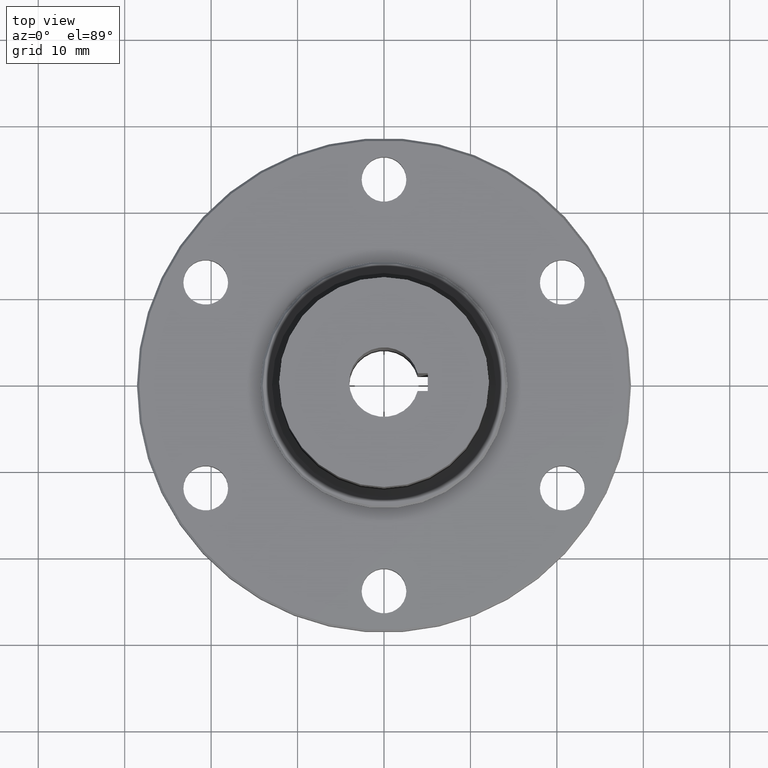
[diagram: clean part render]
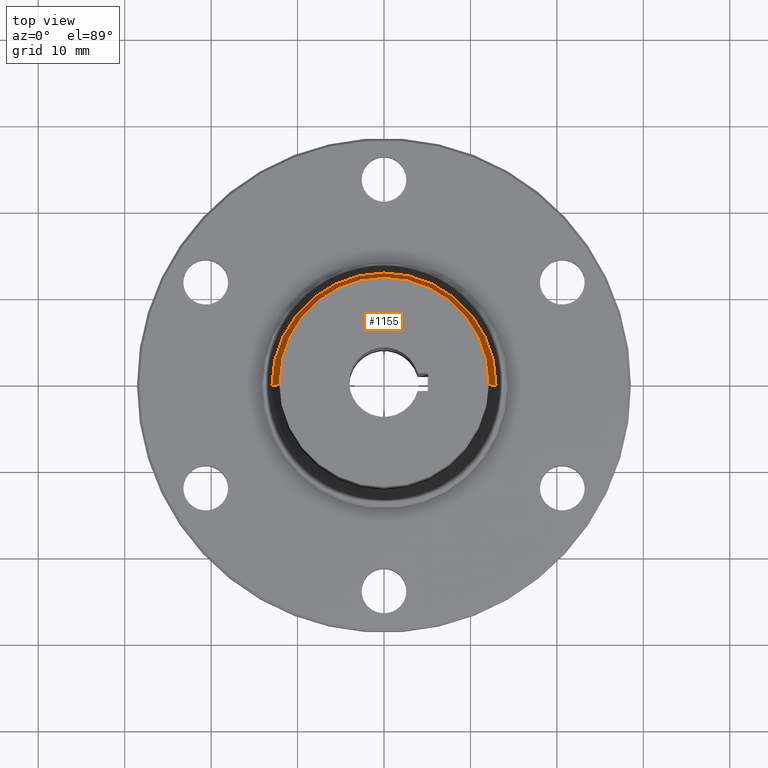
[diagram: same view with one face highlighted and labeled with its STEP entity id]
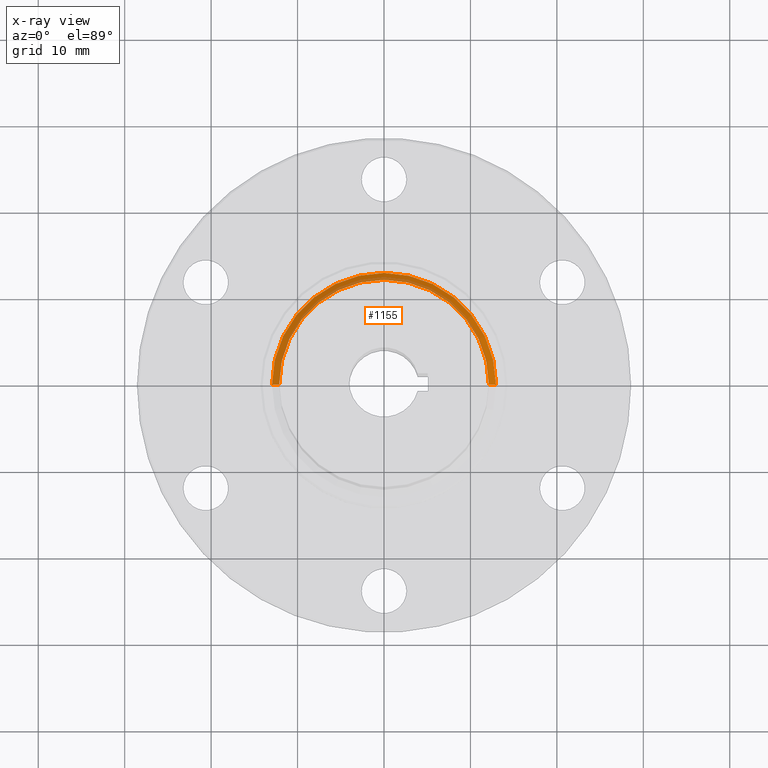
[diagram: x-ray of the same camera — body ghosted, the highlighted face saturated]
A machine part, top view. The second image highlights one B-rep face of the part: STEP entity #1155.
The next image is the same camera in x-ray: the body ghosted, the highlighted face saturated — about 25% of this face is hidden behind the body in this view.
In plain terms, the highlighted conical surface has half-angle 45 deg.
Its self-contained STEP definition (entity closure, byte-faithful):
#74 = CARTESIAN_POINT ( 'NONE',  ( -0.4779999999999999800, 0.0000000000000000000, 0.2820000000000018000 ) ) ;
#82 = DIRECTION ( 'NONE',  ( 1.000000000000000000, 0.0000000000000000000, 0.0000000000000000000 ) ) ;
#110 = VERTEX_POINT ( 'NONE', #504 ) ;
#121 = DIRECTION ( 'NONE',  ( 1.000000000000000000, 0.0000000000000000000, 0.0000000000000000000 ) ) ;
#132 = DIRECTION ( 'NONE',  ( 0.0000000000000000000, 0.0000000000000000000, 1.000000000000000000 ) ) ;
#136 = CARTESIAN_POINT ( 'NONE',  ( 0.0000000000000000000, 0.0000000000000000000, 0.2820000000000018000 ) ) ;
#141 = VERTEX_POINT ( 'NONE', #432 ) ;
#146 = CARTESIAN_POINT ( 'NONE',  ( 0.0000000000000000000, 0.0000000000000000000, 0.2820000000000018000 ) ) ;
#149 = EDGE_CURVE ( 'NONE', #918, #141, #294, .T. ) ;
#205 = LINE ( 'NONE', #355, #980 ) ;
#228 = DIRECTION ( 'NONE',  ( -0.0000000000000000000, -0.0000000000000000000, -1.000000000000000000 ) ) ;
#247 = CIRCLE ( 'NONE', #713, 0.5100000000000015600 ) ;
#262 = ORIENTED_EDGE ( 'NONE', *, *, #434, .T. ) ;
#293 = ORIENTED_EDGE ( 'NONE', *, *, #816, .F. ) ;
#294 = CIRCLE ( 'NONE', #901, 0.4779999999999999800 ) ;
#355 = CARTESIAN_POINT ( 'NONE',  ( 0.4779999999999999800, 5.853811699924347700E-017, 0.2820000000000018000 ) ) ;
#408 = CONICAL_SURFACE ( 'NONE', #829, 0.4779999999999999800, 0.7853981633974450600 ) ;
#432 = CARTESIAN_POINT ( 'NONE',  ( -0.4779999999999999800, 0.0000000000000000000, 0.2820000000000018000 ) ) ;
#434 = EDGE_CURVE ( 'NONE', #918, #903, #205, .T. ) ;
#504 = CARTESIAN_POINT ( 'NONE',  ( -0.5100000000000015600, 0.0000000000000000000, 0.2500000000000000000 ) ) ;
#626 = DIRECTION ( 'NONE',  ( 0.0000000000000000000, 0.0000000000000000000, -1.000000000000000000 ) ) ;
#652 = LINE ( 'NONE', #74, #839 ) ;
#668 = EDGE_CURVE ( 'NONE', #141, #110, #652, .T. ) ;
#713 = AXIS2_PLACEMENT_3D ( 'NONE', #808, #228, #82 ) ;
#718 = DIRECTION ( 'NONE',  ( -1.000000000000000000, 0.0000000000000000000, 0.0000000000000000000 ) ) ;
#760 = CARTESIAN_POINT ( 'NONE',  ( 0.5100000000000015600, 6.245698675651520800E-017, 0.2500000000000000000 ) ) ;
#778 = ORIENTED_EDGE ( 'NONE', *, *, #149, .F. ) ;
#803 = ORIENTED_EDGE ( 'NONE', *, *, #668, .F. ) ;
#808 = CARTESIAN_POINT ( 'NONE',  ( 0.0000000000000000000, 0.0000000000000000000, 0.2500000000000000000 ) ) ;
#816 = EDGE_CURVE ( 'NONE', #110, #903, #247, .T. ) ;
#829 = AXIS2_PLACEMENT_3D ( 'NONE', #146, #626, #718 ) ;
#839 = VECTOR ( 'NONE', #841, 39.37007874015748100 ) ;
#841 = DIRECTION ( 'NONE',  ( -0.7071067811865452400, 0.0000000000000000000, -0.7071067811865497900 ) ) ;
#901 = AXIS2_PLACEMENT_3D ( 'NONE', #136, #132, #121 ) ;
#903 = VERTEX_POINT ( 'NONE', #760 ) ;
#918 = VERTEX_POINT ( 'NONE', #1136 ) ;
#944 = FACE_OUTER_BOUND ( 'NONE', #1065, .T. ) ;
#946 = DIRECTION ( 'NONE',  ( 0.7071067811865452400, 8.659560562354904500E-017, -0.7071067811865497900 ) ) ;
#980 = VECTOR ( 'NONE', #946, 39.37007874015748100 ) ;
#1065 = EDGE_LOOP ( 'NONE', ( #778, #262, #293, #803 ) ) ;
#1136 = CARTESIAN_POINT ( 'NONE',  ( 0.4779999999999999800, 5.853811699924347700E-017, 0.2820000000000018000 ) ) ;
#1155 = ADVANCED_FACE ( 'NONE', ( #944 ), #408, .T. ) ;